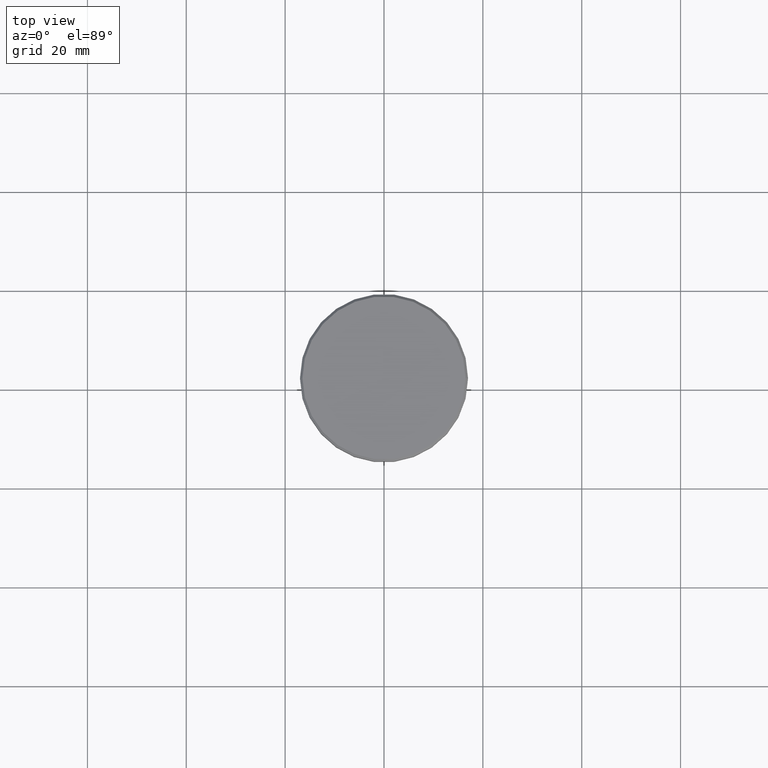
[diagram: clean part render]
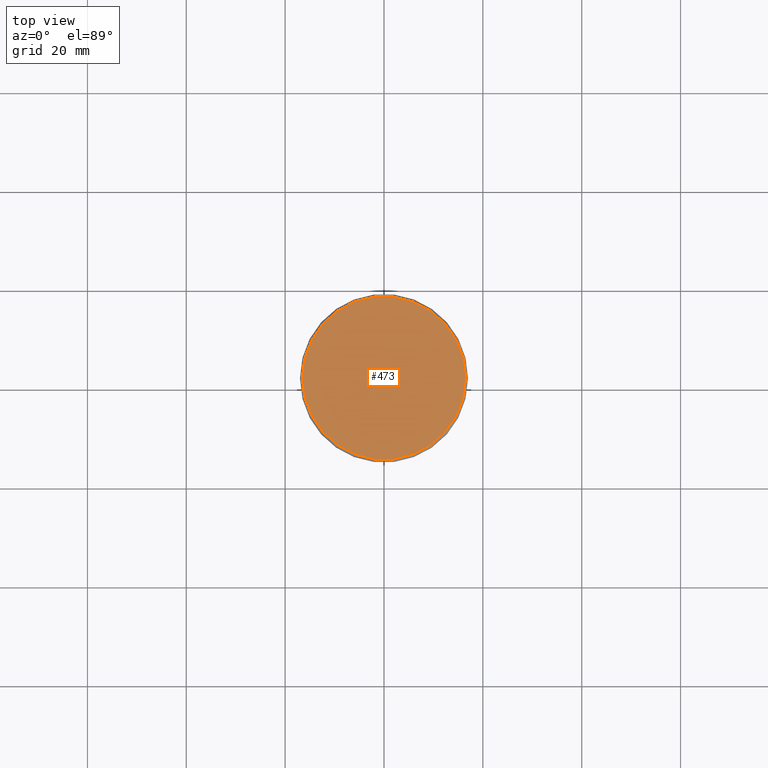
[diagram: same view with one face highlighted and labeled with its STEP entity id]
A machine part, top view. The second image highlights one B-rep face of the part: STEP entity #473.
In plain terms, the highlighted planar face has unit normal (0, -0, 1).
Its self-contained STEP definition (entity closure, byte-faithful):
#10 = CIRCLE ( 'NONE', #704, 16.49999999999998579 ) ;
#59 = VERTEX_POINT ( 'NONE', #129 ) ;
#129 = CARTESIAN_POINT ( 'NONE',  ( -16.49999999999998579, 0.000000000000000000, 0.000000000000000000 ) ) ;
#154 = EDGE_CURVE ( 'NONE', #315, #59, #10, .T. ) ;
#206 = FACE_OUTER_BOUND ( 'NONE', #444, .T. ) ;
#302 = DIRECTION ( 'NONE',  ( 1.000000000000000000, 0.000000000000000000, 0.000000000000000000 ) ) ;
#315 = VERTEX_POINT ( 'NONE', #1148 ) ;
#378 = PLANE ( 'NONE',  #648 ) ;
#397 = CARTESIAN_POINT ( 'NONE',  ( 0.000000000000000000, 0.000000000000000000, 0.000000000000000000 ) ) ;
#444 = EDGE_LOOP ( 'NONE', ( #1152, #719 ) ) ;
#473 = ADVANCED_FACE ( 'NONE', ( #206 ), #378, .T. ) ;
#518 = CIRCLE ( 'NONE', #684, 16.49999999999998579 ) ;
#578 = CARTESIAN_POINT ( 'NONE',  ( 0.000000000000000000, 0.000000000000000000, 0.000000000000000000 ) ) ;
#584 = DIRECTION ( 'NONE',  ( 0.000000000000000000, -0.000000000000000000, 1.000000000000000000 ) ) ;
#648 = AXIS2_PLACEMENT_3D ( 'NONE', #397, #584, #1120 ) ;
#684 = AXIS2_PLACEMENT_3D ( 'NONE', #761, #852, #302 ) ;
#704 = AXIS2_PLACEMENT_3D ( 'NONE', #578, #1020, #945 ) ;
#719 = ORIENTED_EDGE ( 'NONE', *, *, #154, .T. ) ;
#761 = CARTESIAN_POINT ( 'NONE',  ( 0.000000000000000000, 0.000000000000000000, 0.000000000000000000 ) ) ;
#852 = DIRECTION ( 'NONE',  ( -0.000000000000000000, -0.000000000000000000, 1.000000000000000000 ) ) ;
#870 = EDGE_CURVE ( 'NONE', #59, #315, #518, .T. ) ;
#945 = DIRECTION ( 'NONE',  ( 1.000000000000000000, 0.000000000000000000, 0.000000000000000000 ) ) ;
#1020 = DIRECTION ( 'NONE',  ( -0.000000000000000000, -0.000000000000000000, 1.000000000000000000 ) ) ;
#1120 = DIRECTION ( 'NONE',  ( 1.000000000000000000, 0.000000000000000000, 0.000000000000000000 ) ) ;
#1148 = CARTESIAN_POINT ( 'NONE',  ( 16.49999999999998579, 2.051283388571816098E-15, 0.000000000000000000 ) ) ;
#1152 = ORIENTED_EDGE ( 'NONE', *, *, #870, .T. ) ;